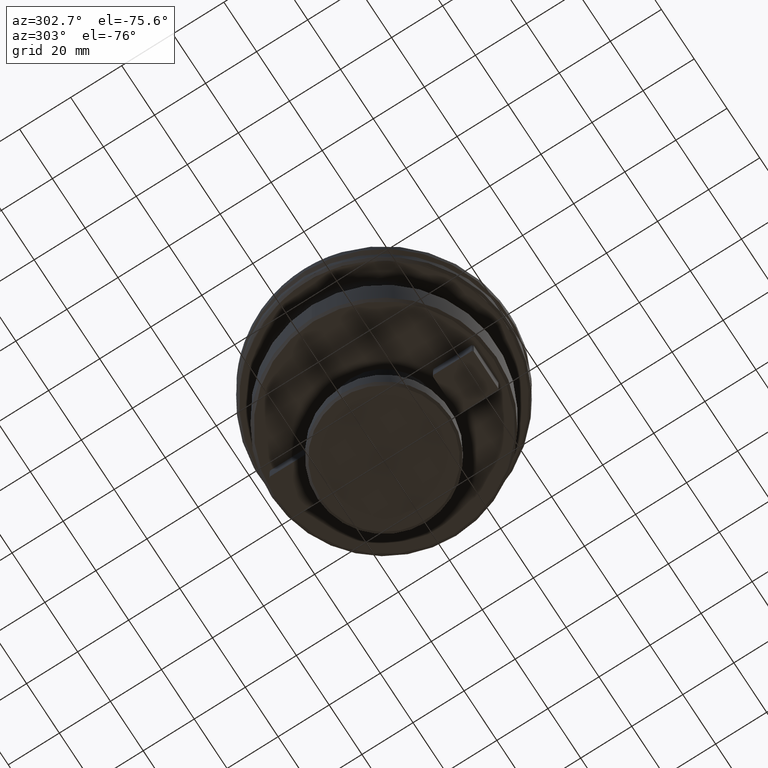
[diagram: clean part render]
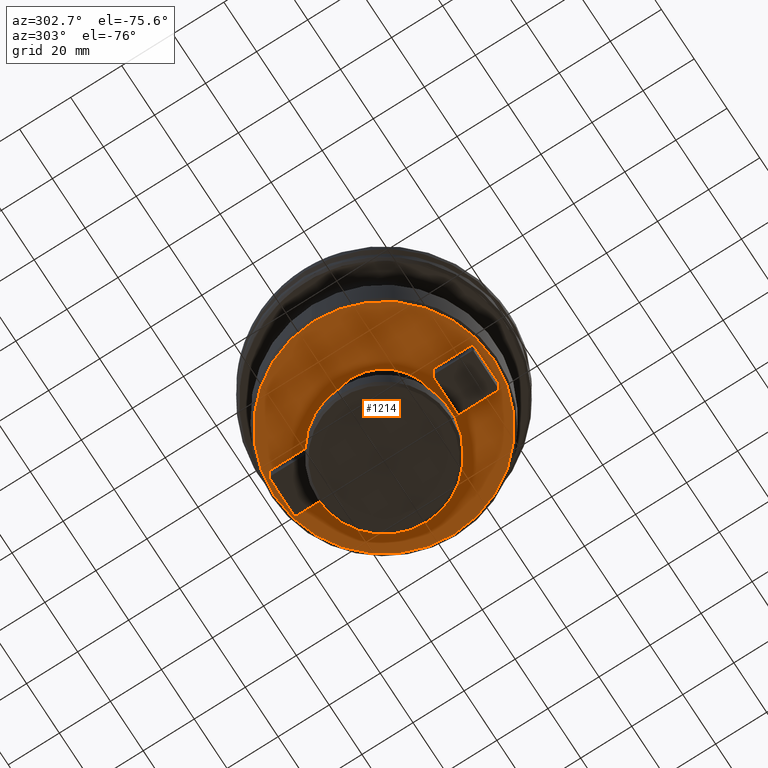
[diagram: same view with one face highlighted and labeled with its STEP entity id]
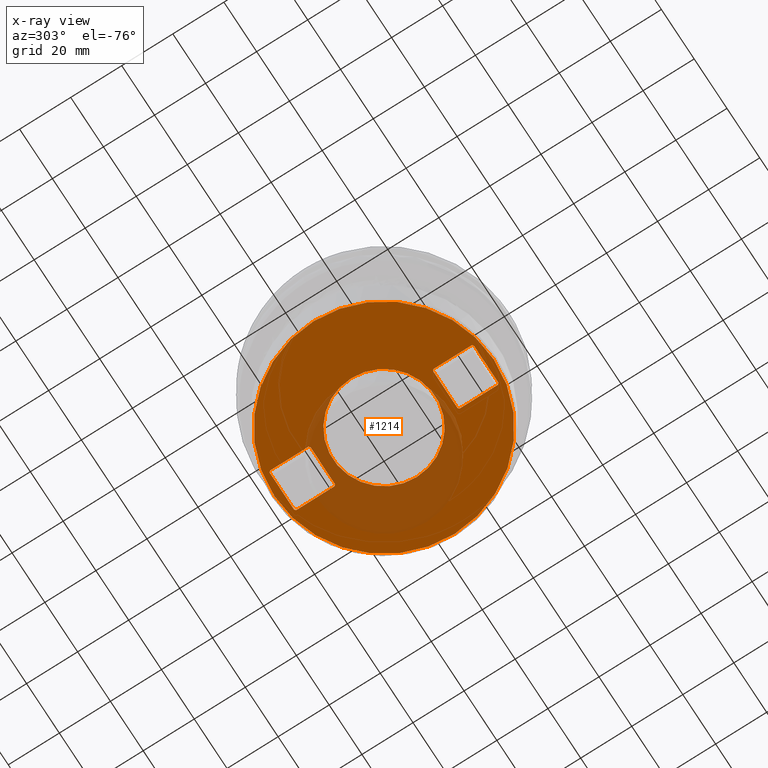
[diagram: x-ray of the same camera — body ghosted, the highlighted face saturated]
A machine part, auxiliary view. The second image highlights one B-rep face of the part: STEP entity #1214.
The next image is the same camera in x-ray: the body ghosted, the highlighted face saturated — about 23% of this face is hidden behind the body in this view.
In plain terms, the highlighted planar face has unit normal (0, 0, -1).
Its self-contained STEP definition (entity closure, byte-faithful):
#60 = CARTESIAN_POINT ( 'NONE',  ( 7.499999999999961800, -40.00000000000000700, -54.99999999999999300 ) ) ;
#80 = VECTOR ( 'NONE', #3812, 1000.000000000000000 ) ;
#225 = VERTEX_POINT ( 'NONE', #3212 ) ;
#270 = VERTEX_POINT ( 'NONE', #2680 ) ;
#287 = LINE ( 'NONE', #667, #604 ) ;
#332 = CARTESIAN_POINT ( 'NONE',  ( -7.999999999999992900, 24.50000000000002800, -54.99999999999999300 ) ) ;
#343 = CARTESIAN_POINT ( 'NONE',  ( 7.999999999999996400, -24.50000000000003600, -54.99999999999999300 ) ) ;
#557 = ORIENTED_EDGE ( 'NONE', *, *, #1199, .T. ) ;
#564 = EDGE_LOOP ( 'NONE', ( #2068, #2969, #3301, #989, #4685, #2990, #2022, #2522 ) ) ;
#565 = VERTEX_POINT ( 'NONE', #1205 ) ;
#604 = VECTOR ( 'NONE', #692, 1000.000000000000100 ) ;
#653 = CARTESIAN_POINT ( 'NONE',  ( 0.0000000000000000000, 7.885106708985494000E-017, -55.00000000000000000 ) ) ;
#667 = CARTESIAN_POINT ( 'NONE',  ( 7.999999999999992900, -24.50000000000003200, -54.99999999999999300 ) ) ;
#692 = DIRECTION ( 'NONE',  ( -0.7071067811865474600, 0.7071067811865474600, -0.0000000000000000000 ) ) ;
#709 = CARTESIAN_POINT ( 'NONE',  ( -7.499999999999964500, -24.00000000000000700, -54.99999999999999300 ) ) ;
#745 = VERTEX_POINT ( 'NONE', #60 ) ;
#750 = CARTESIAN_POINT ( 'NONE',  ( 0.0000000000000000000, 0.0000000000000000000, -55.00000000000000000 ) ) ;
#822 = CIRCLE ( 'NONE', #2782, 43.00000000000000000 ) ;
#832 = VECTOR ( 'NONE', #4525, 1000.000000000000000 ) ;
#836 = VERTEX_POINT ( 'NONE', #3521 ) ;
#878 = LINE ( 'NONE', #1134, #80 ) ;
#884 = EDGE_CURVE ( 'NONE', #2669, #1086, #4322, .T. ) ;
#921 = CARTESIAN_POINT ( 'NONE',  ( 0.0000000000000000000, -40.00000000000000700, -55.00000000000000000 ) ) ;
#926 = CARTESIAN_POINT ( 'NONE',  ( -20.00000000000000000, 2.449293598294706500E-015, -55.00000000000000000 ) ) ;
#937 = DIRECTION ( 'NONE',  ( -0.7071067811865474600, -0.7071067811865474600, -0.0000000000000000000 ) ) ;
#946 = CARTESIAN_POINT ( 'NONE',  ( -7.499999999999961800, -24.00000000000000400, -54.99999999999999300 ) ) ;
#953 = VERTEX_POINT ( 'NONE', #4896 ) ;
#959 = CARTESIAN_POINT ( 'NONE',  ( 7.999999999999989300, 24.50000000000002800, -54.99999999999999300 ) ) ;
#962 = CARTESIAN_POINT ( 'NONE',  ( 0.0000000000000000000, -43.00000000000000000, -55.00000000000000000 ) ) ;
#989 = ORIENTED_EDGE ( 'NONE', *, *, #1524, .T. ) ;
#1006 = EDGE_CURVE ( 'NONE', #4763, #4011, #4384, .T. ) ;
#1027 = VECTOR ( 'NONE', #1886, 1000.000000000000000 ) ;
#1040 = EDGE_CURVE ( 'NONE', #953, #2507, #4511, .T. ) ;
#1068 = CARTESIAN_POINT ( 'NONE',  ( -7.499999999999963600, 24.00000000000000000, -54.99999999999999300 ) ) ;
#1086 = VERTEX_POINT ( 'NONE', #4504 ) ;
#1103 = ORIENTED_EDGE ( 'NONE', *, *, #3626, .T. ) ;
#1126 = VECTOR ( 'NONE', #1522, 1000.000000000000000 ) ;
#1134 = CARTESIAN_POINT ( 'NONE',  ( 0.0000000000000000000, 40.00000000000001400, -55.00000000000000000 ) ) ;
#1140 = DIRECTION ( 'NONE',  ( 0.0000000000000000000, -7.885106708985487800E-017, 1.000000000000000000 ) ) ;
#1167 = DIRECTION ( 'NONE',  ( 1.000000000000000000, 0.0000000000000000000, 0.0000000000000000000 ) ) ;
#1199 = EDGE_CURVE ( 'NONE', #4276, #836, #4198, .T. ) ;
#1205 = CARTESIAN_POINT ( 'NONE',  ( 7.499999999999966200, 40.00000000000000700, -55.00000000000000000 ) ) ;
#1214 = ADVANCED_FACE ( 'NONE', ( #4470, #4774, #4878, #4871 ), #4152, .T. ) ;
#1292 = ORIENTED_EDGE ( 'NONE', *, *, #1006, .T. ) ;
#1397 = CARTESIAN_POINT ( 'NONE',  ( -7.999999999999992900, -43.00000000000000000, -55.00000000000000000 ) ) ;
#1497 = LINE ( 'NONE', #946, #3139 ) ;
#1522 = DIRECTION ( 'NONE',  ( 1.000000000000000000, -0.0000000000000000000, 0.0000000000000000000 ) ) ;
#1524 = EDGE_CURVE ( 'NONE', #225, #2667, #3882, .T. ) ;
#1526 = CARTESIAN_POINT ( 'NONE',  ( 0.0000000000000000000, 0.0000000000000000000, -55.00000000000000000 ) ) ;
#1609 = VERTEX_POINT ( 'NONE', #1940 ) ;
#1714 = EDGE_CURVE ( 'NONE', #1892, #745, #2008, .T. ) ;
#1724 = CARTESIAN_POINT ( 'NONE',  ( -7.999999999999992900, 39.49999999999997900, -54.99999999999999300 ) ) ;
#1737 = EDGE_CURVE ( 'NONE', #3665, #4763, #287, .T. ) ;
#1825 = DIRECTION ( 'NONE',  ( -0.0000000000000000000, -1.000000000000000000, -0.0000000000000000000 ) ) ;
#1884 = ORIENTED_EDGE ( 'NONE', *, *, #4505, .T. ) ;
#1886 = DIRECTION ( 'NONE',  ( 1.000000000000000000, -0.0000000000000000000, 0.0000000000000000000 ) ) ;
#1892 = VERTEX_POINT ( 'NONE', #2317 ) ;
#1910 = EDGE_CURVE ( 'NONE', #2308, #565, #2002, .T. ) ;
#1940 = CARTESIAN_POINT ( 'NONE',  ( 7.999999999999992900, -39.49999999999997900, -54.99999999999999300 ) ) ;
#1983 = DIRECTION ( 'NONE',  ( 1.000000000000000000, 0.0000000000000000000, 0.0000000000000000000 ) ) ;
#2002 = LINE ( 'NONE', #2294, #3277 ) ;
#2008 = LINE ( 'NONE', #921, #1126 ) ;
#2022 = ORIENTED_EDGE ( 'NONE', *, *, #4667, .T. ) ;
#2068 = ORIENTED_EDGE ( 'NONE', *, *, #4246, .T. ) ;
#2148 = CARTESIAN_POINT ( 'NONE',  ( 7.999999999999989300, -43.00000000000000000, -55.00000000000000000 ) ) ;
#2213 = EDGE_CURVE ( 'NONE', #3142, #3930, #3283, .T. ) ;
#2275 = CARTESIAN_POINT ( 'NONE',  ( 7.999999999999991100, 39.49999999999995000, -55.00000000000000000 ) ) ;
#2294 = CARTESIAN_POINT ( 'NONE',  ( 7.999999999999992900, 39.49999999999995000, -55.00000000000000000 ) ) ;
#2308 = VERTEX_POINT ( 'NONE', #2275 ) ;
#2317 = CARTESIAN_POINT ( 'NONE',  ( -7.499999999999966200, -40.00000000000000700, -55.00000000000000000 ) ) ;
#2328 = CARTESIAN_POINT ( 'NONE',  ( 7.499999999999961800, 24.00000000000000400, -54.99999999999999300 ) ) ;
#2330 = LINE ( 'NONE', #2393, #832 ) ;
#2341 = ORIENTED_EDGE ( 'NONE', *, *, #2699, .T. ) ;
#2393 = CARTESIAN_POINT ( 'NONE',  ( 7.999999999999992900, -43.00000000000000000, -55.00000000000000000 ) ) ;
#2420 = VECTOR ( 'NONE', #2530, 1000.000000000000000 ) ;
#2468 = DIRECTION ( 'NONE',  ( 0.7071067811865474600, 0.7071067811865474600, -0.0000000000000000000 ) ) ;
#2480 = CARTESIAN_POINT ( 'NONE',  ( -7.999999999999992900, 24.50000000000003200, -54.99999999999999300 ) ) ;
#2498 = ORIENTED_EDGE ( 'NONE', *, *, #4602, .T. ) ;
#2507 = VERTEX_POINT ( 'NONE', #1724 ) ;
#2522 = ORIENTED_EDGE ( 'NONE', *, *, #1040, .T. ) ;
#2530 = DIRECTION ( 'NONE',  ( 0.0000000000000000000, 1.000000000000000000, 0.0000000000000000000 ) ) ;
#2537 = DIRECTION ( 'NONE',  ( 0.7071067811865474600, -0.7071067811865474600, -0.0000000000000000000 ) ) ;
#2665 = LINE ( 'NONE', #3154, #4066 ) ;
#2667 = VERTEX_POINT ( 'NONE', #959 ) ;
#2669 = VERTEX_POINT ( 'NONE', #962 ) ;
#2680 = CARTESIAN_POINT ( 'NONE',  ( 20.00000000000000000, 0.0000000000000000000, -55.00000000000000000 ) ) ;
#2686 = DIRECTION ( 'NONE',  ( 0.0000000000000000000, -1.000000000000000000, 0.0000000000000000000 ) ) ;
#2699 = EDGE_CURVE ( 'NONE', #4011, #4276, #1497, .T. ) ;
#2701 = ORIENTED_EDGE ( 'NONE', *, *, #4876, .T. ) ;
#2706 = VERTEX_POINT ( 'NONE', #926 ) ;
#2782 = AXIS2_PLACEMENT_3D ( 'NONE', #653, #1140, #2686 ) ;
#2969 = ORIENTED_EDGE ( 'NONE', *, *, #2213, .T. ) ;
#2990 = ORIENTED_EDGE ( 'NONE', *, *, #1910, .T. ) ;
#3064 = DIRECTION ( 'NONE',  ( 0.0000000000000000000, 0.0000000000000000000, 1.000000000000000000 ) ) ;
#3086 = ORIENTED_EDGE ( 'NONE', *, *, #884, .F. ) ;
#3139 = VECTOR ( 'NONE', #937, 1000.000000000000100 ) ;
#3142 = VERTEX_POINT ( 'NONE', #332 ) ;
#3154 = CARTESIAN_POINT ( 'NONE',  ( -7.999999999999992900, -39.49999999999995000, -55.00000000000000000 ) ) ;
#3212 = CARTESIAN_POINT ( 'NONE',  ( 7.499999999999964500, 24.00000000000000700, -54.99999999999999300 ) ) ;
#3241 = VECTOR ( 'NONE', #2537, 1000.000000000000100 ) ;
#3277 = VECTOR ( 'NONE', #3944, 999.9999999999998900 ) ;
#3283 = LINE ( 'NONE', #2480, #3241 ) ;
#3301 = ORIENTED_EDGE ( 'NONE', *, *, #3806, .T. ) ;
#3332 = LINE ( 'NONE', #3738, #1027 ) ;
#3340 = EDGE_LOOP ( 'NONE', ( #4369, #3436, #1292, #2341, #557, #2498, #4572, #1884 ) ) ;
#3370 = LINE ( 'NONE', #2148, #2420 ) ;
#3400 = EDGE_LOOP ( 'NONE', ( #3086, #3632 ) ) ;
#3436 = ORIENTED_EDGE ( 'NONE', *, *, #1737, .T. ) ;
#3484 = DIRECTION ( 'NONE',  ( 0.0000000000000000000, 0.0000000000000000000, 1.000000000000000000 ) ) ;
#3503 = CARTESIAN_POINT ( 'NONE',  ( 7.499999999999963600, -24.00000000000000000, -54.99999999999999300 ) ) ;
#3521 = CARTESIAN_POINT ( 'NONE',  ( -7.999999999999989300, -39.49999999999995000, -55.00000000000000000 ) ) ;
#3561 = EDGE_CURVE ( 'NONE', #1609, #3665, #2330, .T. ) ;
#3624 = CIRCLE ( 'NONE', #4451, 20.00000000000000000 ) ;
#3626 = EDGE_CURVE ( 'NONE', #2706, #270, #4534, .T. ) ;
#3632 = ORIENTED_EDGE ( 'NONE', *, *, #4753, .F. ) ;
#3665 = VERTEX_POINT ( 'NONE', #343 ) ;
#3738 = CARTESIAN_POINT ( 'NONE',  ( 0.0000000000000000000, 24.00000000000000000, -55.00000000000000000 ) ) ;
#3806 = EDGE_CURVE ( 'NONE', #3930, #225, #3332, .T. ) ;
#3812 = DIRECTION ( 'NONE',  ( -1.000000000000000000, 0.0000000000000000000, -0.0000000000000000000 ) ) ;
#3882 = LINE ( 'NONE', #2328, #4278 ) ;
#3930 = VERTEX_POINT ( 'NONE', #1068 ) ;
#3944 = DIRECTION ( 'NONE',  ( -0.7071067811865278100, 0.7071067811865673300, -0.0000000000000000000 ) ) ;
#4011 = VERTEX_POINT ( 'NONE', #709 ) ;
#4042 = CARTESIAN_POINT ( 'NONE',  ( -7.999999999999989300, -24.50000000000002800, -54.99999999999999300 ) ) ;
#4044 = DIRECTION ( 'NONE',  ( 0.7071067811865474600, 0.7071067811865474600, -0.0000000000000000000 ) ) ;
#4066 = VECTOR ( 'NONE', #4429, 999.9999999999998900 ) ;
#4082 = CARTESIAN_POINT ( 'NONE',  ( 7.499999999999966200, -40.00000000000000700, -54.99999999999999300 ) ) ;
#4113 = EDGE_LOOP ( 'NONE', ( #2701, #1103 ) ) ;
#4119 = DIRECTION ( 'NONE',  ( -1.000000000000000000, 0.0000000000000000000, -0.0000000000000000000 ) ) ;
#4121 = DIRECTION ( 'NONE',  ( 0.0000000000000000000, 0.0000000000000000000, -1.000000000000000000 ) ) ;
#4137 = CARTESIAN_POINT ( 'NONE',  ( 0.0000000000000000000, -43.00000000000000000, -55.00000000000000000 ) ) ;
#4152 = PLANE ( 'NONE',  #4809 ) ;
#4158 = DIRECTION ( 'NONE',  ( -0.0000000000000000000, -1.000000000000000000, -0.0000000000000000000 ) ) ;
#4159 = EDGE_CURVE ( 'NONE', #2667, #2308, #3370, .T. ) ;
#4198 = LINE ( 'NONE', #4247, #4715 ) ;
#4246 = EDGE_CURVE ( 'NONE', #2507, #3142, #4647, .T. ) ;
#4247 = CARTESIAN_POINT ( 'NONE',  ( -7.999999999999989300, -43.00000000000000000, -55.00000000000000000 ) ) ;
#4276 = VERTEX_POINT ( 'NONE', #4042 ) ;
#4278 = VECTOR ( 'NONE', #2468, 1000.000000000000100 ) ;
#4322 = CIRCLE ( 'NONE', #4669, 43.00000000000000000 ) ;
#4369 = ORIENTED_EDGE ( 'NONE', *, *, #3561, .T. ) ;
#4384 = LINE ( 'NONE', #4868, #4425 ) ;
#4425 = VECTOR ( 'NONE', #4863, 1000.000000000000000 ) ;
#4429 = DIRECTION ( 'NONE',  ( 0.7071067811865278100, -0.7071067811865673300, -0.0000000000000000000 ) ) ;
#4451 = AXIS2_PLACEMENT_3D ( 'NONE', #1526, #3064, #1983 ) ;
#4461 = AXIS2_PLACEMENT_3D ( 'NONE', #750, #3484, #1167 ) ;
#4462 = VECTOR ( 'NONE', #4688, 1000.000000000000100 ) ;
#4470 = FACE_BOUND ( 'NONE', #564, .T. ) ;
#4504 = CARTESIAN_POINT ( 'NONE',  ( 5.327213576290986800E-015, 43.00000000000000000, -55.00000000000000000 ) ) ;
#4505 = EDGE_CURVE ( 'NONE', #745, #1609, #4860, .T. ) ;
#4511 = LINE ( 'NONE', #4692, #4462 ) ;
#4525 = DIRECTION ( 'NONE',  ( 0.0000000000000000000, 1.000000000000000000, 0.0000000000000000000 ) ) ;
#4534 = CIRCLE ( 'NONE', #4461, 20.00000000000000000 ) ;
#4572 = ORIENTED_EDGE ( 'NONE', *, *, #1714, .T. ) ;
#4602 = EDGE_CURVE ( 'NONE', #836, #1892, #2665, .T. ) ;
#4640 = VECTOR ( 'NONE', #4044, 1000.000000000000100 ) ;
#4647 = LINE ( 'NONE', #1397, #4721 ) ;
#4667 = EDGE_CURVE ( 'NONE', #565, #953, #878, .T. ) ;
#4669 = AXIS2_PLACEMENT_3D ( 'NONE', #4920, #4915, #4911 ) ;
#4685 = ORIENTED_EDGE ( 'NONE', *, *, #4159, .T. ) ;
#4688 = DIRECTION ( 'NONE',  ( -0.7071067811865474600, -0.7071067811865474600, -0.0000000000000000000 ) ) ;
#4692 = CARTESIAN_POINT ( 'NONE',  ( -7.499999999999966200, 40.00000000000000700, -54.99999999999999300 ) ) ;
#4715 = VECTOR ( 'NONE', #4158, 1000.000000000000000 ) ;
#4721 = VECTOR ( 'NONE', #1825, 1000.000000000000000 ) ;
#4753 = EDGE_CURVE ( 'NONE', #1086, #2669, #822, .T. ) ;
#4763 = VERTEX_POINT ( 'NONE', #3503 ) ;
#4774 = FACE_OUTER_BOUND ( 'NONE', #3400, .T. ) ;
#4809 = AXIS2_PLACEMENT_3D ( 'NONE', #4137, #4121, #4119 ) ;
#4860 = LINE ( 'NONE', #4082, #4640 ) ;
#4863 = DIRECTION ( 'NONE',  ( -1.000000000000000000, 0.0000000000000000000, -0.0000000000000000000 ) ) ;
#4868 = CARTESIAN_POINT ( 'NONE',  ( 0.0000000000000000000, -24.00000000000000400, -55.00000000000000000 ) ) ;
#4871 = FACE_BOUND ( 'NONE', #3340, .T. ) ;
#4876 = EDGE_CURVE ( 'NONE', #270, #2706, #3624, .T. ) ;
#4878 = FACE_BOUND ( 'NONE', #4113, .T. ) ;
#4896 = CARTESIAN_POINT ( 'NONE',  ( -7.499999999999961800, 40.00000000000000700, -54.99999999999999300 ) ) ;
#4911 = DIRECTION ( 'NONE',  ( 0.0000000000000000000, -1.000000000000000000, 0.0000000000000000000 ) ) ;
#4915 = DIRECTION ( 'NONE',  ( 0.0000000000000000000, -7.885106708985487800E-017, 1.000000000000000000 ) ) ;
#4920 = CARTESIAN_POINT ( 'NONE',  ( 0.0000000000000000000, 7.885106708985494000E-017, -55.00000000000000000 ) ) ;